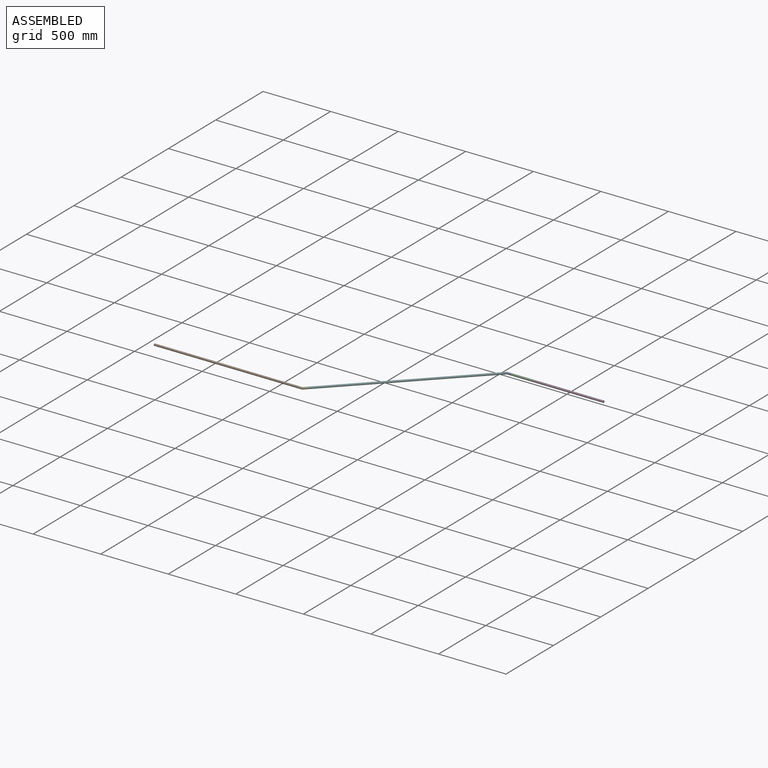
[diagram: assembled view]
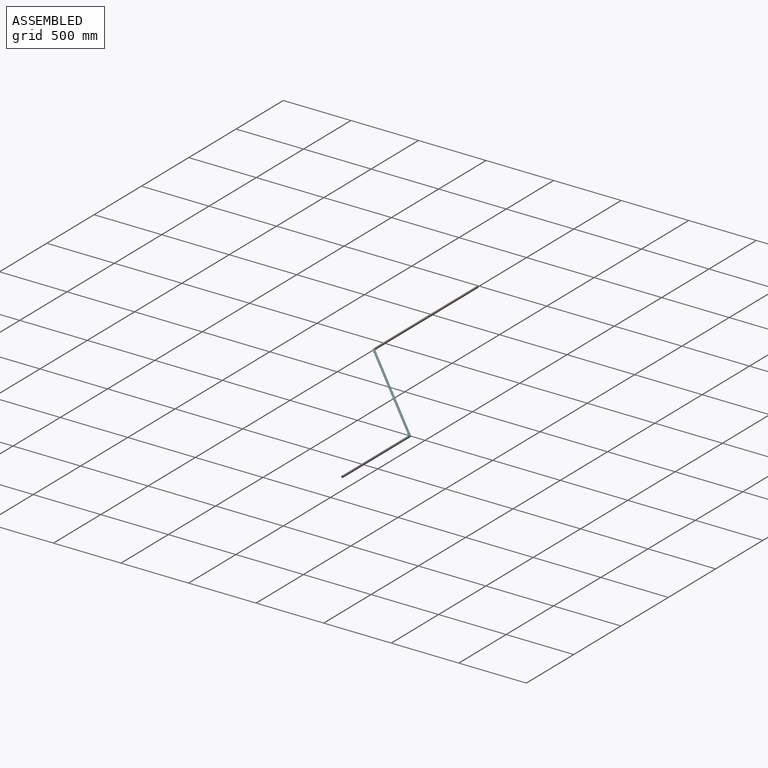
[diagram: assembled view, second angle]
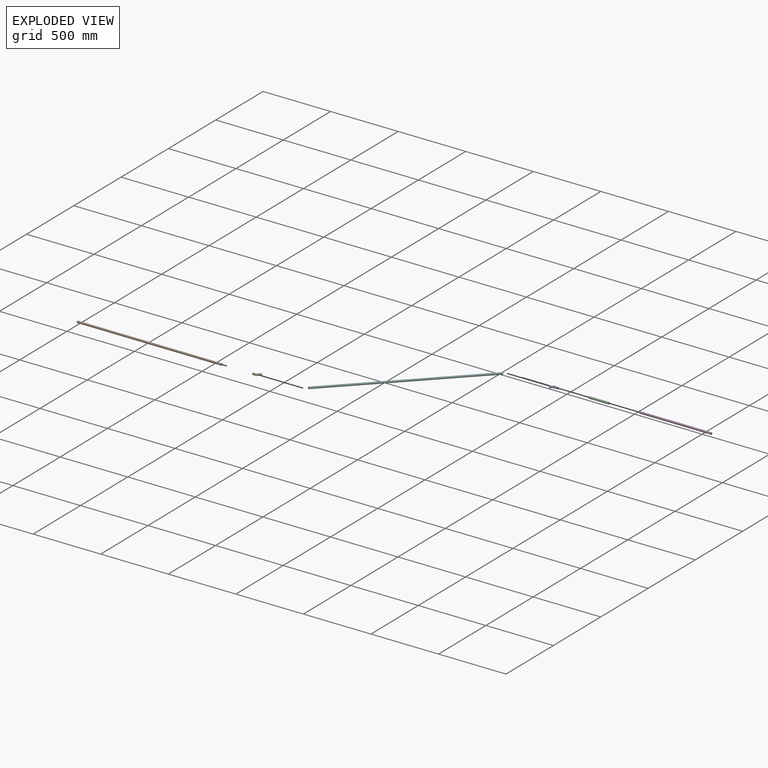
[diagram: exploded view]
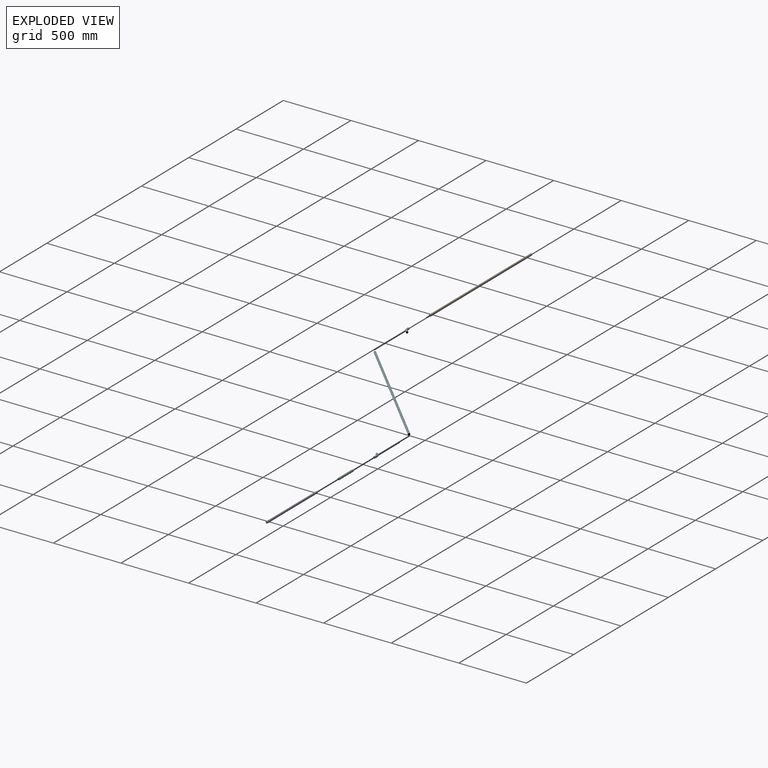
[diagram: exploded view, second angle]
ASSEMBLY  parts=6 mates=5
PART A: 5 faces, bbox 39.7x55.3x15 mm
  f0: plane 15x15mm, normal (0,-1,0), area 176.7mm2, adj f2
  f1: plane 15x10.61mm, normal (0.71,0.71,0), area 176.7mm2, adj f4
  f2: cylinder r=7.5mm len=18.79mm, axis (0,1,0), area 885.3mm2, adj f0,f3
  f3: torus R=15mm, axis (0,0,-1), area 555.2mm2, adj f2,f4
  f4: cylinder r=7.5mm len=31.21mm, axis (0.71,0.71,0), area 1373.3mm2, adj f1,f3
PART B: 3 faces, bbox 15x1070x15 mm
  f0: cylinder r=7.5mm len=1070mm, axis (0,-1,0), area 50422.6mm2, adj f1,f2
  f1: plane 15x15mm, normal (0,1,0), area 176.7mm2, adj f0
  f2: plane 15x15mm, normal (0,-1,0), area 176.7mm2, adj f0
PART C: 3 faces, bbox 15x150x15 mm
  f0: cylinder r=7.5mm len=150mm, axis (0,1,0), area 7068.6mm2, adj f1,f2
  f1: plane 15x15mm, normal (0,-1,0), area 176.7mm2, adj f0
  f2: plane 15x15mm, normal (0,1,0), area 176.7mm2, adj f0
PART D: 3 faces, bbox 15x530x15 mm
  f0: cylinder r=7.5mm len=530mm, axis (0,-1,0), area 24975.7mm2, adj f1,f2
  f1: plane 15x15mm, normal (0,1,0), area 176.7mm2, adj f0
  f2: plane 15x15mm, normal (0,-1,0), area 176.7mm2, adj f0
PART E: same geometry as A
PART F: 3 faces, bbox 15x1200x15 mm
  f0: cylinder r=7.5mm len=1200mm, axis (0,1,0), area 56548.7mm2, adj f1,f2
  f1: plane 15x15mm, normal (0,-1,0), area 176.7mm2, adj f0
  f2: plane 15x15mm, normal (0,1,0), area 176.7mm2, adj f0
PLACE A rot(axis=(0,0,-1),45deg) t=(3573.53,7433.53,-1575)mm
PLACE B rot(axis=(0.71,0.71,0),180deg) t=(1605,6596.43,-1538.41)mm
PLACE C rot(axis=(0,0,-1),90deg) t=(3776.56,7389.77,-1611.59)mm
PLACE D rot(axis=(-0.71,0.71,0),180deg) t=(4306.56,7514.77,-1538.41)mm
PLACE E rot(axis=(0.71,0.71,0),180deg) t=(2675,6560,-1575)mm
PLACE F rot(axis=(0,0,-1),45deg) t=(3528.58,7478.48,-1611.59)mm
MATE fastened D.f0 <-> C.f0  axis (1,0,0) through (3776.56,7451.21,-1575)mm
MATE fastened E.f2 <-> B.f0  axis (-1,0,0) through (2675,6560,-1575)mm
MATE fastened A.f2 <-> F.f0  axis (-0.71,-0.71,0) through (3573.53,7433.53,-1575)mm
MATE fastened C.f0 <-> A.f4  axis (-1,0,0) through (3626.56,7451.21,-1575)mm
MATE fastened E.f4 <-> F.f0  axis (0.71,0.71,0) through (2725,6585,-1575)mm
